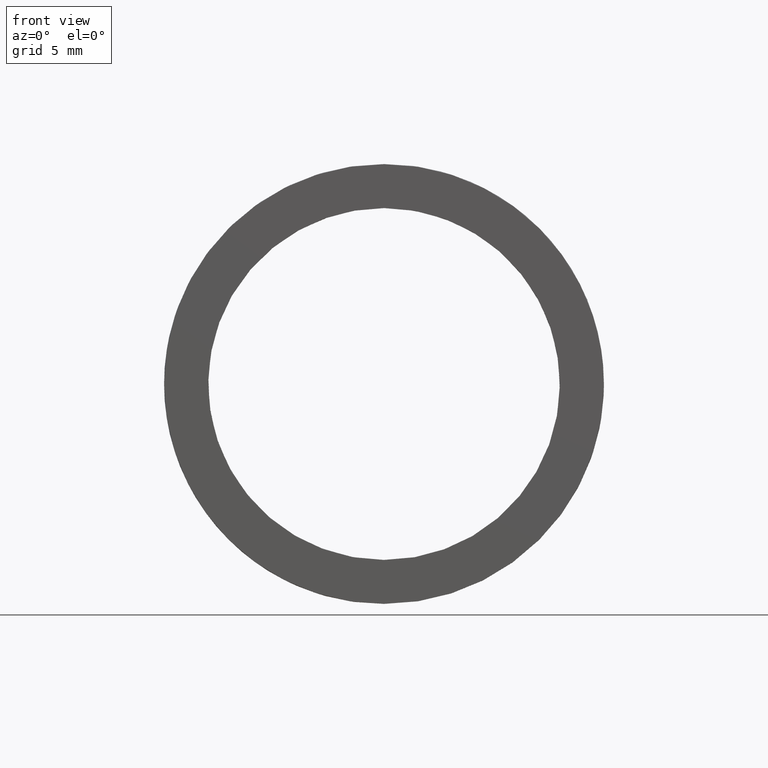
[diagram: clean part render]
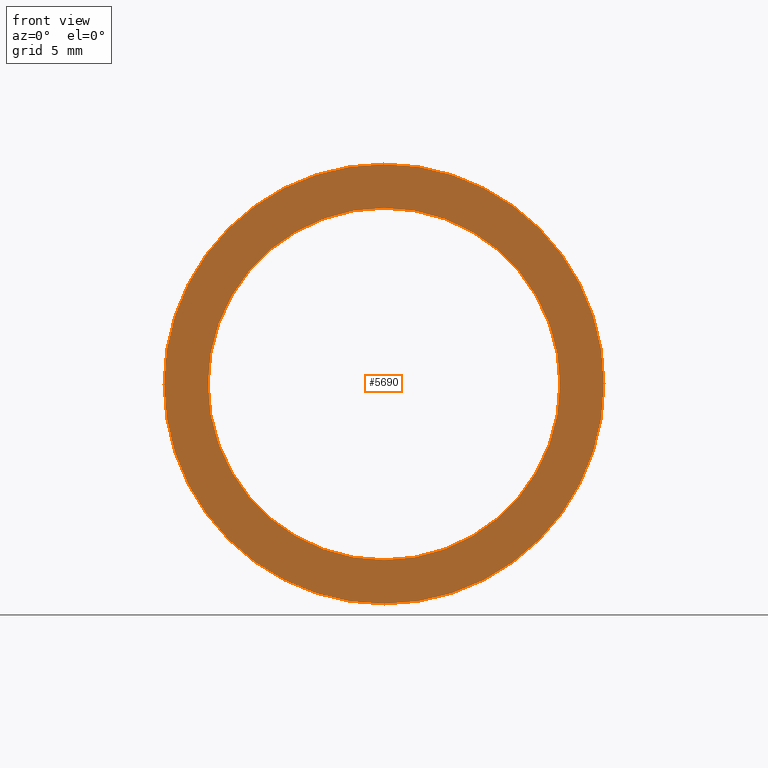
[diagram: same view with one face highlighted and labeled with its STEP entity id]
A machine part, front view. The second image highlights one B-rep face of the part: STEP entity #5690.
In plain terms, the highlighted planar face has unit normal (0, 1, 0).
Its self-contained STEP definition (entity closure, byte-faithful):
#116 = DIRECTION ( 'NONE',  ( 0.0000000000000000000, 0.0000000000000000000, 1.000000000000000000 ) ) ;
#699 = CARTESIAN_POINT ( 'NONE',  ( 0.0000000000000000000, 0.0000000000000000000, 0.0000000000000000000 ) ) ;
#957 = AXIS2_PLACEMENT_3D ( 'NONE', #10733, #2633, #8883 ) ;
#1169 = VERTEX_POINT ( 'NONE', #6181 ) ;
#1196 = EDGE_CURVE ( 'NONE', #1789, #6473, #8884, .T. ) ;
#1357 = PLANE ( 'NONE',  #3426 ) ;
#1461 = CIRCLE ( 'NONE', #8354, 10.00000000000000000 ) ;
#1789 = VERTEX_POINT ( 'NONE', #5093 ) ;
#2633 = DIRECTION ( 'NONE',  ( 0.0000000000000000000, 1.000000000000000000, 0.0000000000000000000 ) ) ;
#2965 = EDGE_LOOP ( 'NONE', ( #10237, #9037 ) ) ;
#3288 = CARTESIAN_POINT ( 'NONE',  ( 1.224646799147353100E-015, 0.0000000000000000000, 10.00000000000000000 ) ) ;
#3426 = AXIS2_PLACEMENT_3D ( 'NONE', #8585, #7805, #5936 ) ;
#3789 = CARTESIAN_POINT ( 'NONE',  ( 0.0000000000000000000, 0.0000000000000000000, 0.0000000000000000000 ) ) ;
#3913 = DIRECTION ( 'NONE',  ( 0.0000000000000000000, 0.0000000000000000000, 1.000000000000000000 ) ) ;
#5093 = CARTESIAN_POINT ( 'NONE',  ( 0.0000000000000000000, 0.0000000000000000000, -10.00000000000000000 ) ) ;
#5174 = CARTESIAN_POINT ( 'NONE',  ( 9.797174393178823700E-016, 0.0000000000000000000, 8.000000000000000000 ) ) ;
#5688 = CIRCLE ( 'NONE', #957, 8.000000000000000000 ) ;
#5690 = ADVANCED_FACE ( 'NONE', ( #8406, #9372 ), #1357, .F. ) ;
#5729 = CARTESIAN_POINT ( 'NONE',  ( 0.0000000000000000000, 0.0000000000000000000, 0.0000000000000000000 ) ) ;
#5936 = DIRECTION ( 'NONE',  ( 0.0000000000000000000, -0.0000000000000000000, 1.000000000000000000 ) ) ;
#6181 = CARTESIAN_POINT ( 'NONE',  ( 0.0000000000000000000, 0.0000000000000000000, -8.000000000000000000 ) ) ;
#6473 = VERTEX_POINT ( 'NONE', #3288 ) ;
#6533 = DIRECTION ( 'NONE',  ( 0.0000000000000000000, 1.000000000000000000, 0.0000000000000000000 ) ) ;
#6650 = DIRECTION ( 'NONE',  ( 0.0000000000000000000, 1.000000000000000000, 0.0000000000000000000 ) ) ;
#7321 = ORIENTED_EDGE ( 'NONE', *, *, #7878, .F. ) ;
#7805 = DIRECTION ( 'NONE',  ( 0.0000000000000000000, 1.000000000000000000, 0.0000000000000000000 ) ) ;
#7878 = EDGE_CURVE ( 'NONE', #6473, #1789, #1461, .T. ) ;
#8354 = AXIS2_PLACEMENT_3D ( 'NONE', #3789, #6533, #116 ) ;
#8406 = FACE_OUTER_BOUND ( 'NONE', #11038, .T. ) ;
#8585 = CARTESIAN_POINT ( 'NONE',  ( 0.0000000000000000000, 0.0000000000000000000, 0.0000000000000000000 ) ) ;
#8649 = EDGE_CURVE ( 'NONE', #1169, #9028, #9779, .T. ) ;
#8883 = DIRECTION ( 'NONE',  ( 0.0000000000000000000, 0.0000000000000000000, 1.000000000000000000 ) ) ;
#8884 = CIRCLE ( 'NONE', #10734, 10.00000000000000000 ) ;
#9028 = VERTEX_POINT ( 'NONE', #5174 ) ;
#9037 = ORIENTED_EDGE ( 'NONE', *, *, #10922, .T. ) ;
#9372 = FACE_BOUND ( 'NONE', #2965, .T. ) ;
#9611 = DIRECTION ( 'NONE',  ( 0.0000000000000000000, 1.000000000000000000, 0.0000000000000000000 ) ) ;
#9779 = CIRCLE ( 'NONE', #10001, 8.000000000000000000 ) ;
#10001 = AXIS2_PLACEMENT_3D ( 'NONE', #699, #9611, #11426 ) ;
#10237 = ORIENTED_EDGE ( 'NONE', *, *, #8649, .T. ) ;
#10733 = CARTESIAN_POINT ( 'NONE',  ( 0.0000000000000000000, 0.0000000000000000000, 0.0000000000000000000 ) ) ;
#10734 = AXIS2_PLACEMENT_3D ( 'NONE', #5729, #6650, #3913 ) ;
#10872 = ORIENTED_EDGE ( 'NONE', *, *, #1196, .F. ) ;
#10922 = EDGE_CURVE ( 'NONE', #9028, #1169, #5688, .T. ) ;
#11038 = EDGE_LOOP ( 'NONE', ( #10872, #7321 ) ) ;
#11426 = DIRECTION ( 'NONE',  ( 0.0000000000000000000, 0.0000000000000000000, 1.000000000000000000 ) ) ;